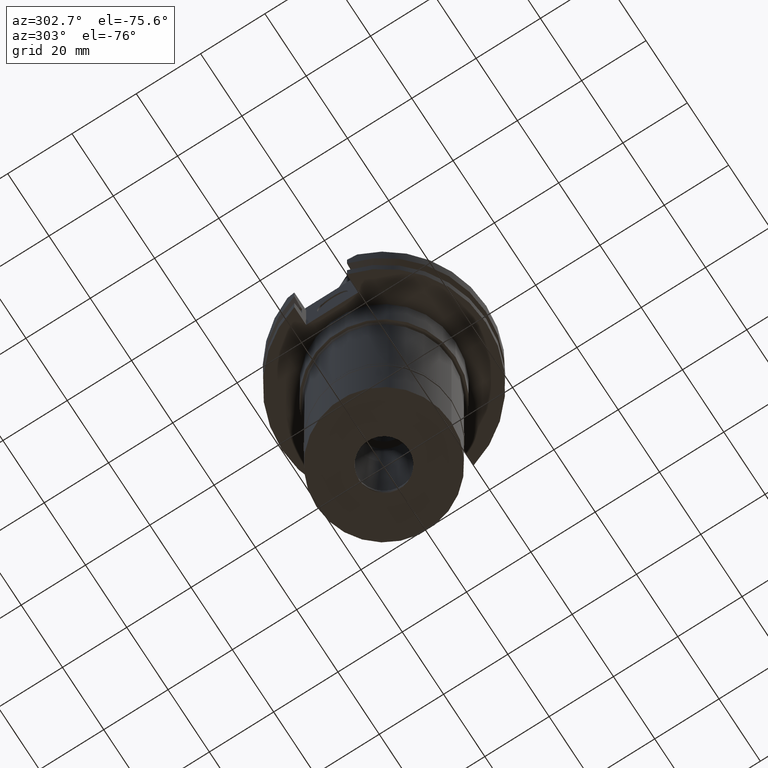
[diagram: clean part render]
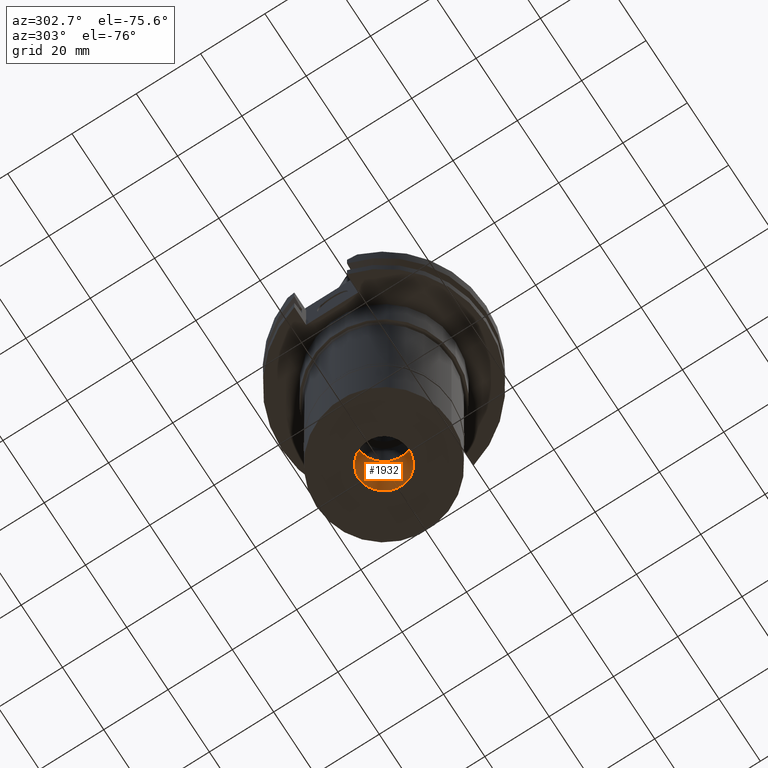
[diagram: same view with one face highlighted and labeled with its STEP entity id]
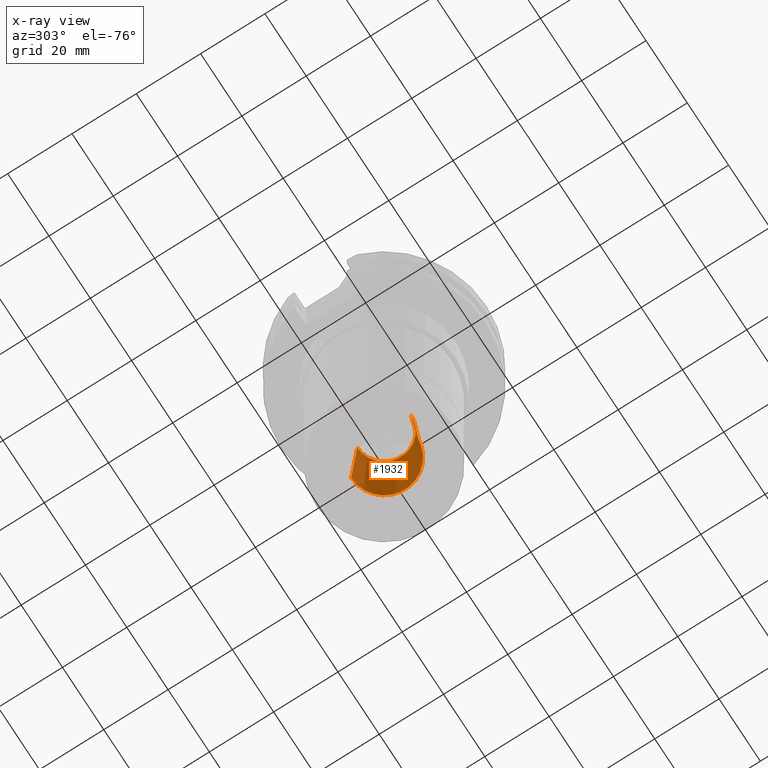
[diagram: x-ray of the same camera — body ghosted, the highlighted face saturated]
A machine part, auxiliary view. The second image highlights one B-rep face of the part: STEP entity #1932.
The next image is the same camera in x-ray: the body ghosted, the highlighted face saturated — about 6% of this face is hidden behind the body in this view.
In plain terms, the highlighted conical surface has half-angle 4 deg.
Its self-contained STEP definition (entity closure, byte-faithful):
#27 = DIRECTION ( 'NONE',  ( 0.0000000000000000000, 0.0000000000000000000, -1.000000000000000000 ) ) ;
#131 = CARTESIAN_POINT ( 'NONE',  ( 0.0000000000000000000, 0.0000000000000000000, -94.10000000000000853 ) ) ;
#220 = CIRCLE ( 'NONE', #1104, 10.25000000000000000 ) ;
#248 = CARTESIAN_POINT ( 'NONE',  ( 0.0000000000000000000, 0.0000000000000000000, -80.15685039971000947 ) ) ;
#267 = VECTOR ( 'NONE', #2130, 1000.000000000000000 ) ;
#285 = DIRECTION ( 'NONE',  ( 0.0000000000000000000, -1.000000000000000000, 0.0000000000000000000 ) ) ;
#503 = ORIENTED_EDGE ( 'NONE', *, *, #3047, .T. ) ;
#541 = LINE ( 'NONE', #2570, #2748 ) ;
#545 = AXIS2_PLACEMENT_3D ( 'NONE', #248, #3029, #285 ) ;
#687 = CARTESIAN_POINT ( 'NONE',  ( 0.0000000000000000000, 8.300000000000000711, -66.21370079940999176 ) ) ;
#812 = EDGE_LOOP ( 'NONE', ( #2289, #503, #2013, #2076 ) ) ;
#868 = EDGE_CURVE ( 'NONE', #3100, #2450, #220, .T. ) ;
#1021 = FACE_OUTER_BOUND ( 'NONE', #812, .T. ) ;
#1023 = CARTESIAN_POINT ( 'NONE',  ( 0.0000000000000000000, 0.0000000000000000000, -66.21370079940999176 ) ) ;
#1104 = AXIS2_PLACEMENT_3D ( 'NONE', #131, #27, #2794 ) ;
#1106 = CARTESIAN_POINT ( 'NONE',  ( 0.0000000000000000000, 10.25000000000000000, -94.10000000000000853 ) ) ;
#1127 = DIRECTION ( 'NONE',  ( 0.0000000000000000000, 0.06975647374412173585, 0.9975640502598245307 ) ) ;
#1279 = DIRECTION ( 'NONE',  ( 0.0000000000000000000, 1.000000000000000000, 0.0000000000000000000 ) ) ;
#1392 = EDGE_CURVE ( 'NONE', #1819, #1642, #3098, .T. ) ;
#1492 = DIRECTION ( 'NONE',  ( 0.0000000000000000000, 0.0000000000000000000, -1.000000000000000000 ) ) ;
#1642 = VERTEX_POINT ( 'NONE', #2866 ) ;
#1819 = VERTEX_POINT ( 'NONE', #687 ) ;
#1923 = LINE ( 'NONE', #1106, #267 ) ;
#1932 = ADVANCED_FACE ( 'NONE', ( #1021 ), #3258, .F. ) ;
#2013 = ORIENTED_EDGE ( 'NONE', *, *, #1392, .F. ) ;
#2076 = ORIENTED_EDGE ( 'NONE', *, *, #2568, .F. ) ;
#2130 = DIRECTION ( 'NONE',  ( 0.0000000000000000000, -0.06975647374412173585, 0.9975640502598245307 ) ) ;
#2289 = ORIENTED_EDGE ( 'NONE', *, *, #868, .T. ) ;
#2450 = VERTEX_POINT ( 'NONE', #2828 ) ;
#2568 = EDGE_CURVE ( 'NONE', #3100, #1819, #1923, .T. ) ;
#2570 = CARTESIAN_POINT ( 'NONE',  ( 0.0000000000000000000, -10.25000000000000000, -94.10000000000000853 ) ) ;
#2649 = CARTESIAN_POINT ( 'NONE',  ( 0.0000000000000000000, 10.25000000000000000, -94.10000000000000853 ) ) ;
#2748 = VECTOR ( 'NONE', #1127, 1000.000000000000000 ) ;
#2794 = DIRECTION ( 'NONE',  ( 0.0000000000000000000, 1.000000000000000000, 0.0000000000000000000 ) ) ;
#2828 = CARTESIAN_POINT ( 'NONE',  ( 0.0000000000000000000, -10.25000000000000000, -94.10000000000000853 ) ) ;
#2866 = CARTESIAN_POINT ( 'NONE',  ( 0.0000000000000000000, -8.300000000000000711, -66.21370079940999176 ) ) ;
#2933 = AXIS2_PLACEMENT_3D ( 'NONE', #1023, #1492, #1279 ) ;
#3029 = DIRECTION ( 'NONE',  ( 0.0000000000000000000, 0.0000000000000000000, -1.000000000000000000 ) ) ;
#3047 = EDGE_CURVE ( 'NONE', #2450, #1642, #541, .T. ) ;
#3098 = CIRCLE ( 'NONE', #2933, 8.300000000000000711 ) ;
#3100 = VERTEX_POINT ( 'NONE', #2649 ) ;
#3258 = CONICAL_SURFACE ( 'NONE', #545, 9.275000000000000355, 0.06981317007975955391 ) ;